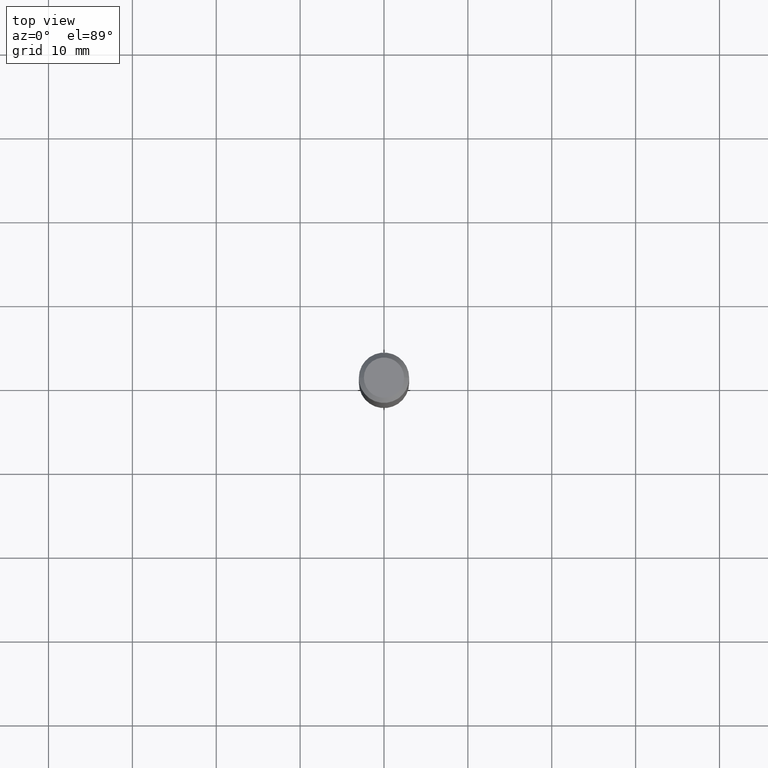
[diagram: clean part render]
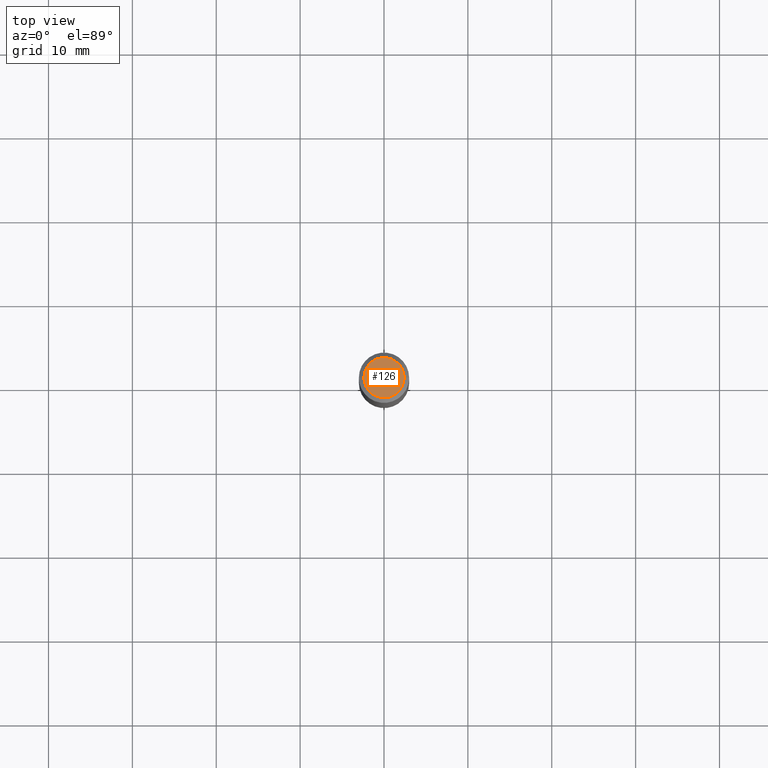
[diagram: same view with one face highlighted and labeled with its STEP entity id]
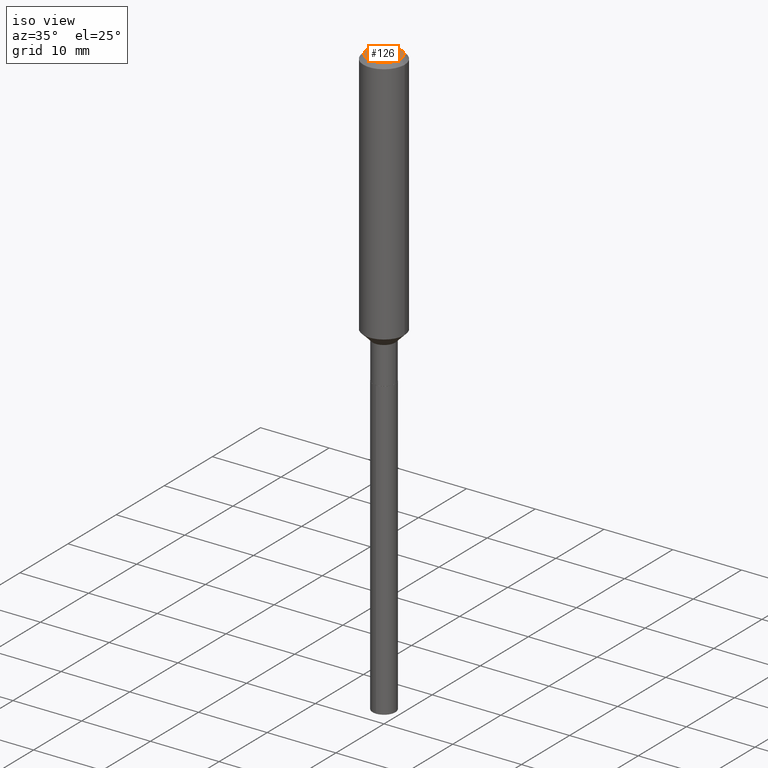
[diagram: same view with one face highlighted and labeled with its STEP entity id]
A machine part, top view. The second image highlights one B-rep face of the part: STEP entity #126.
A second angle (iso view) of the same face is appended — the face is thin or edge-on in the first view.
In plain terms, the highlighted planar face has unit normal (0, -0, -1).
Its self-contained STEP definition (entity closure, byte-faithful):
#6 = PLANE ( 'NONE',  #37 ) ;
#11 = DIRECTION ( 'NONE',  ( -1.000000000000000000, 6.982962677686265922E-15, -4.876176775795935793E-29 ) ) ;
#29 = EDGE_CURVE ( 'NONE', #446, #317, #469, .T. ) ;
#37 = AXIS2_PLACEMENT_3D ( 'NONE', #231, #77, #11 ) ;
#74 = DIRECTION ( 'NONE',  ( -2.445468806185136597E-29, 3.491481338843145583E-15, 1.000000000000000000 ) ) ;
#77 = DIRECTION ( 'NONE',  ( 2.438088387897960049E-29, -3.491481338843145188E-15, -1.000000000000000000 ) ) ;
#111 = CARTESIAN_POINT ( 'NONE',  ( 4.716267017698007905E-46, -6.733579360998555036E-32, -1.928573779297252010E-17 ) ) ;
#126 = ADVANCED_FACE ( 'NONE', ( #347 ), #6, .F. ) ;
#169 = ORIENTED_EDGE ( 'NONE', *, *, #29, .T. ) ;
#180 = DIRECTION ( 'NONE',  ( 1.000000000000000000, -6.982962677686267499E-15, 4.875432709231658792E-29 ) ) ;
#181 = DIRECTION ( 'NONE',  ( -2.445468806185136597E-29, 3.491481338843145583E-15, 1.000000000000000000 ) ) ;
#231 = CARTESIAN_POINT ( 'NONE',  ( 2.358133508849003952E-46, -3.366789680499277518E-32, -9.642868896486260050E-18 ) ) ;
#263 = CIRCLE ( 'NONE', #486, 0.09447999999999998066 ) ;
#317 = VERTEX_POINT ( 'NONE', #356 ) ;
#338 = EDGE_LOOP ( 'NONE', ( #169, #399 ) ) ;
#345 = AXIS2_PLACEMENT_3D ( 'NONE', #369, #181, #408 ) ;
#347 = FACE_OUTER_BOUND ( 'NONE', #338, .T. ) ;
#356 = CARTESIAN_POINT ( 'NONE',  ( 0.09447999999999998066, -7.704367267948738690E-16, -1.928573779296752193E-17 ) ) ;
#360 = EDGE_CURVE ( 'NONE', #317, #446, #263, .T. ) ;
#369 = CARTESIAN_POINT ( 'NONE',  ( 4.716267017698007905E-46, -6.733579360998555036E-32, -1.928573779297252010E-17 ) ) ;
#399 = ORIENTED_EDGE ( 'NONE', *, *, #360, .T. ) ;
#408 = DIRECTION ( 'NONE',  ( 1.000000000000000000, -6.982962677686267499E-15, 4.875432709231658792E-29 ) ) ;
#445 = CARTESIAN_POINT ( 'NONE',  ( -0.09447999999999998066, 7.009847083995354710E-16, -1.928573779297727792E-17 ) ) ;
#446 = VERTEX_POINT ( 'NONE', #445 ) ;
#469 = CIRCLE ( 'NONE', #345, 0.09447999999999998066 ) ;
#486 = AXIS2_PLACEMENT_3D ( 'NONE', #111, #74, #180 ) ;